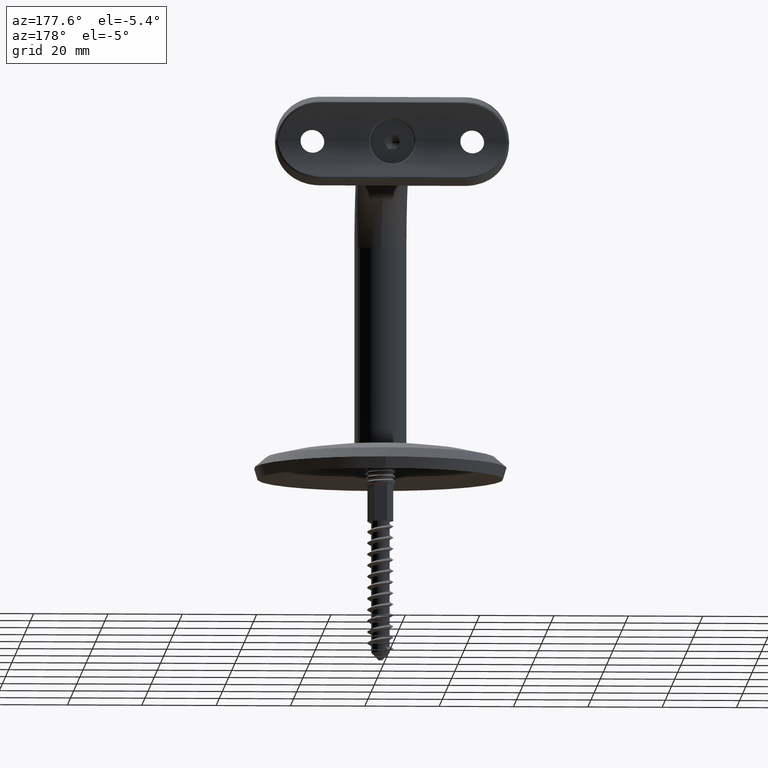
[diagram: clean part render]
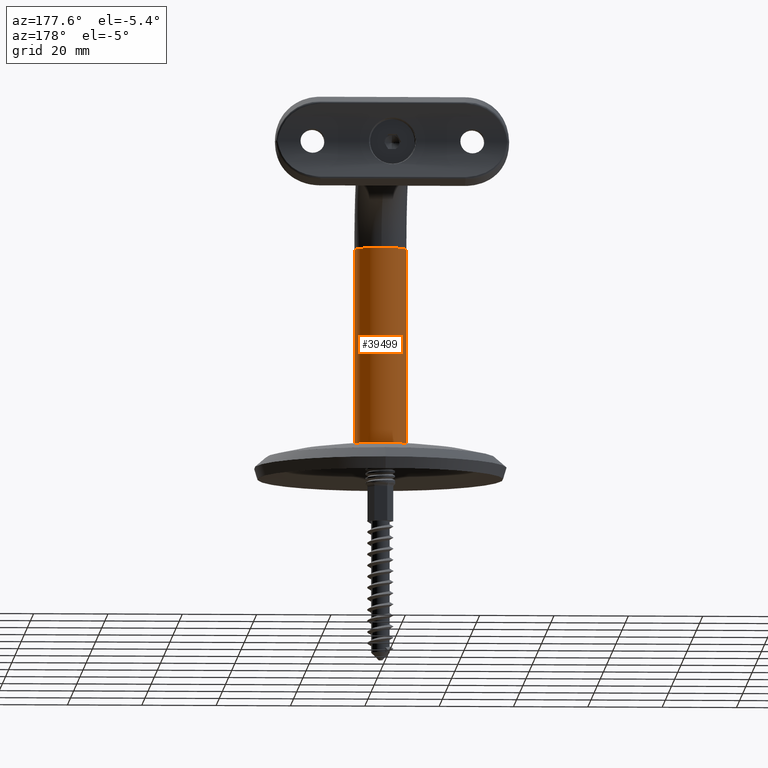
[diagram: same view with one face highlighted and labeled with its STEP entity id]
A machine part, auxiliary view. The second image highlights one B-rep face of the part: STEP entity #39499.
In plain terms, the highlighted cylindrical surface (edge-blend (fillet) strip) has radius 7 mm, axis along (0, 0, -1).
Its self-contained STEP definition (entity closure, byte-faithful):
#23 = CARTESIAN_POINT ( 'NONE',  ( -7.000000000000000000, 0.000000000000000000, 0.1000000000000028644 ) ) ;
#308 = VERTEX_POINT ( 'NONE', #23 ) ;
#972 = LINE ( 'NONE', #17894, #27052 ) ;
#3299 = EDGE_CURVE ( 'NONE', #5850, #14397, #12671, .T. ) ;
#5850 = VERTEX_POINT ( 'NONE', #10863 ) ;
#7505 = AXIS2_PLACEMENT_3D ( 'NONE', #26894, #19889, #12640 ) ;
#7781 = CARTESIAN_POINT ( 'NONE',  ( 0.000000000000000000, 1.040834085586084257E-14, 53.00000000000001421 ) ) ;
#8553 = VECTOR ( 'NONE', #39775, 1000.000000000000000 ) ;
#10863 = CARTESIAN_POINT ( 'NONE',  ( 7.000000000000000000, 8.572527594031469245E-16, 53.00000000000001421 ) ) ;
#11075 = DIRECTION ( 'NONE',  ( 0.000000000000000000, 0.000000000000000000, -1.000000000000000000 ) ) ;
#11136 = CARTESIAN_POINT ( 'NONE',  ( -8.572527594031476148E-16, 7.000000000000011546, 53.00000000000001421 ) ) ;
#11343 = EDGE_CURVE ( 'NONE', #31354, #308, #30793, .T. ) ;
#11953 = ORIENTED_EDGE ( 'NONE', *, *, #3299, .F. ) ;
#12640 = DIRECTION ( 'NONE',  ( -1.000000000000000000, 0.000000000000000000, 0.000000000000000000 ) ) ;
#12671 = CIRCLE ( 'NONE', #28020, 7.000000000000000000 ) ;
#13133 = EDGE_CURVE ( 'NONE', #5850, #31354, #42953, .T. ) ;
#14329 = CIRCLE ( 'NONE', #42902, 7.000000000000000000 ) ;
#14397 = VERTEX_POINT ( 'NONE', #11136 ) ;
#17894 = CARTESIAN_POINT ( 'NONE',  ( -7.000000000000000000, 0.000000000000000000, 53.00000000000001421 ) ) ;
#18141 = CARTESIAN_POINT ( 'NONE',  ( 7.000000000000000000, 8.572527594031471218E-16, 0.1000000000000028644 ) ) ;
#19176 = ORIENTED_EDGE ( 'NONE', *, *, #44000, .F. ) ;
#19889 = DIRECTION ( 'NONE',  ( 0.000000000000000000, 0.000000000000000000, -1.000000000000000000 ) ) ;
#22446 = ORIENTED_EDGE ( 'NONE', *, *, #11343, .T. ) ;
#24134 = VERTEX_POINT ( 'NONE', #33640 ) ;
#25388 = FACE_OUTER_BOUND ( 'NONE', #44521, .T. ) ;
#25709 = ORIENTED_EDGE ( 'NONE', *, *, #41519, .F. ) ;
#26288 = CARTESIAN_POINT ( 'NONE',  ( 0.000000000000000000, 1.040834085586084257E-14, 53.00000000000001421 ) ) ;
#26894 = CARTESIAN_POINT ( 'NONE',  ( 0.000000000000000000, 0.000000000000000000, 53.00000000000001421 ) ) ;
#27052 = VECTOR ( 'NONE', #11075, 1000.000000000000000 ) ;
#28020 = AXIS2_PLACEMENT_3D ( 'NONE', #7781, #32609, #36147 ) ;
#30662 = DIRECTION ( 'NONE',  ( 1.000000000000000000, 0.000000000000000000, 0.000000000000000000 ) ) ;
#30793 = CIRCLE ( 'NONE', #40979, 7.000000000000000000 ) ;
#31354 = VERTEX_POINT ( 'NONE', #18141 ) ;
#32609 = DIRECTION ( 'NONE',  ( 0.000000000000000000, 0.000000000000000000, 1.000000000000000000 ) ) ;
#33640 = CARTESIAN_POINT ( 'NONE',  ( -7.000000000000000000, 0.000000000000000000, 53.00000000000001421 ) ) ;
#33767 = CARTESIAN_POINT ( 'NONE',  ( 0.000000000000000000, 0.000000000000000000, 0.1000000000000028644 ) ) ;
#35313 = CARTESIAN_POINT ( 'NONE',  ( 7.000000000000000000, 8.572527594031471218E-16, 53.00000000000001421 ) ) ;
#36147 = DIRECTION ( 'NONE',  ( 1.000000000000000000, 0.000000000000000000, 0.000000000000000000 ) ) ;
#39250 = ORIENTED_EDGE ( 'NONE', *, *, #13133, .T. ) ;
#39499 = ADVANCED_FACE ( 'NONE', ( #25388 ), #42107, .T. ) ;
#39775 = DIRECTION ( 'NONE',  ( 0.000000000000000000, 0.000000000000000000, -1.000000000000000000 ) ) ;
#40979 = AXIS2_PLACEMENT_3D ( 'NONE', #33767, #41343, #30662 ) ;
#41343 = DIRECTION ( 'NONE',  ( 0.000000000000000000, 0.000000000000000000, 1.000000000000000000 ) ) ;
#41519 = EDGE_CURVE ( 'NONE', #14397, #24134, #14329, .T. ) ;
#42107 = CYLINDRICAL_SURFACE ( 'NONE', #7505, 7.000000000000000000 ) ;
#42902 = AXIS2_PLACEMENT_3D ( 'NONE', #26288, #43988, #43682 ) ;
#42953 = LINE ( 'NONE', #35313, #8553 ) ;
#43682 = DIRECTION ( 'NONE',  ( 1.000000000000000000, 0.000000000000000000, 0.000000000000000000 ) ) ;
#43988 = DIRECTION ( 'NONE',  ( 0.000000000000000000, 0.000000000000000000, 1.000000000000000000 ) ) ;
#44000 = EDGE_CURVE ( 'NONE', #24134, #308, #972, .T. ) ;
#44521 = EDGE_LOOP ( 'NONE', ( #11953, #39250, #22446, #19176, #25709 ) ) ;